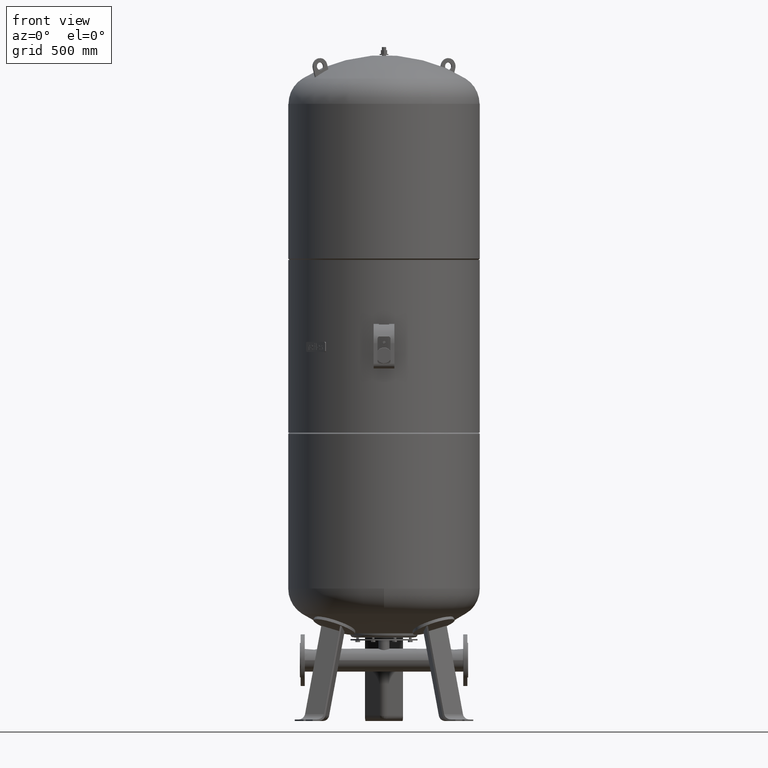
[diagram: clean part render]
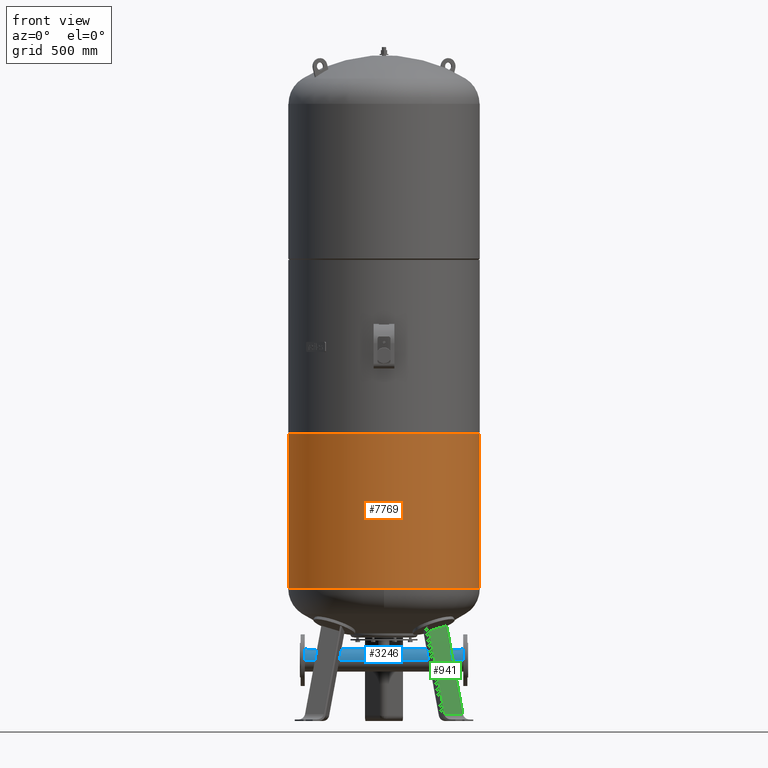
[diagram: same view with three faces highlighted in distinct colors, each labeled with its STEP entity id]
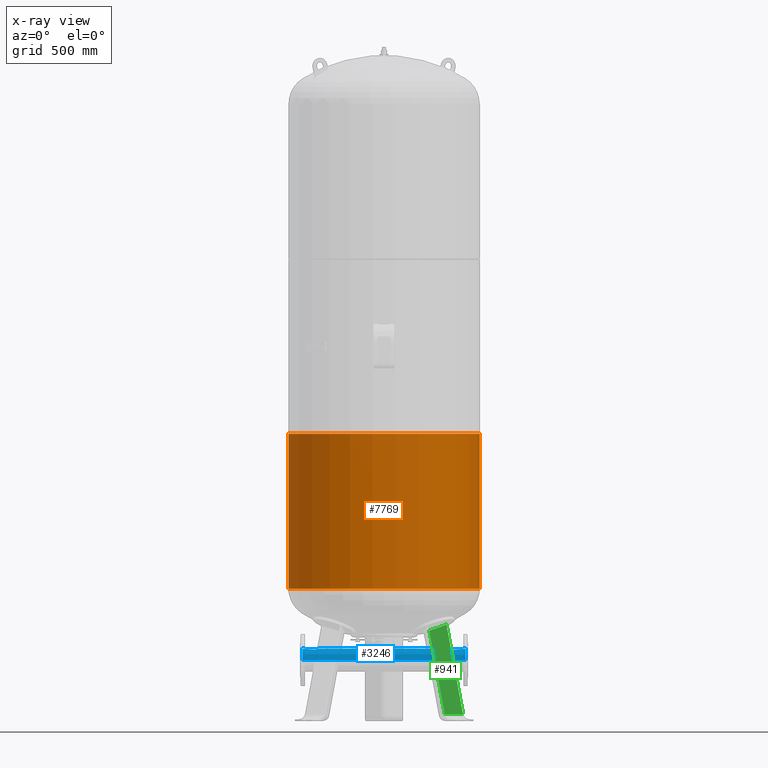
[diagram: x-ray of the same camera — body ghosted, the three highlighted faces saturated]
A machine part, front view with three faces highlighted in distinct colors.
The next image is the same camera in x-ray (body ghosted, the three faces saturated) — at least one of them is partly hidden behind the body in this view.
Their STEP definitions:

[orange] entity #7769 — the highlighted cylindrical surface (partial cylindrical patch) has radius 370 mm, axis along (0, 0, 1).
#7671=CARTESIAN_POINT('',(370.000000000000110,0.0,1109.333333333333000));
#7672=VERTEX_POINT('',#7671);
#7688=CARTESIAN_POINT('',(-370.0,-4.531044E-014,1109.333333333333000));
#7689=VERTEX_POINT('',#7688);
#7696=CARTESIAN_POINT('',(-5.646011E-015,0.0,1109.333333333333000));
#7697=DIRECTION('',(0.0,0.0,1.0));
#7698=DIRECTION('',(1.0,0.0,0.0));
#7699=AXIS2_PLACEMENT_3D('',#7696,#7697,#7698);
#7700=CIRCLE('',#7699,370.000000000000110);
#7701=EDGE_CURVE('',#7689,#7672,#7700,.T.);
#7738=CARTESIAN_POINT('',(-1.116699E-014,0.0,778.166666666666520));
#7739=DIRECTION('',(1.667129E-017,0.0,1.0));
#7740=DIRECTION('',(1.0,0.0,0.0));
#7741=AXIS2_PLACEMENT_3D('',#7738,#7739,#7740);
#7742=CYLINDRICAL_SURFACE('',#7741,370.0);
#7743=CARTESIAN_POINT('',(370.0,0.0,512.0));
#7744=VERTEX_POINT('',#7743);
#7745=CARTESIAN_POINT('',(370.000000000000110,0.0,1109.333333333333000));
#7746=DIRECTION('',(0.0,0.0,-1.0));
#7747=VECTOR('',#7746,597.333333333333030);
#7748=LINE('',#7745,#7747);
#7749=EDGE_CURVE('',#7672,#7744,#7748,.T.);
#7750=ORIENTED_EDGE('',*,*,#7749,.F.);
#7751=ORIENTED_EDGE('',*,*,#7701,.F.);
#7752=CARTESIAN_POINT('',(-370.0,4.531044E-014,512.0));
#7753=VERTEX_POINT('',#7752);
#7754=CARTESIAN_POINT('',(-370.0,-4.531044E-014,1109.333333333333000));
#7755=DIRECTION('',(0.0,0.0,-1.0));
#7756=VECTOR('',#7755,597.333333333333030);
#7757=LINE('',#7754,#7756);
#7758=EDGE_CURVE('',#7689,#7753,#7757,.T.);
#7759=ORIENTED_EDGE('',*,*,#7758,.T.);
#7760=CARTESIAN_POINT('',(-1.560433E-014,0.0,512.0));
#7761=DIRECTION('',(0.0,0.0,-1.0));
#7762=DIRECTION('',(1.0,0.0,0.0));
#7763=AXIS2_PLACEMENT_3D('',#7760,#7761,#7762);
#7764=CIRCLE('',#7763,370.0);
#7765=EDGE_CURVE('',#7744,#7753,#7764,.T.);
#7766=ORIENTED_EDGE('',*,*,#7765,.F.);
#7767=EDGE_LOOP('',(#7750,#7751,#7759,#7766));
#7768=FACE_OUTER_BOUND('',#7767,.T.);
#7769=ADVANCED_FACE('',(#7768),#7742,.T.);

[blue] entity #3246 — the highlighted face is a freeform B-spline surface patch.
#3035=CARTESIAN_POINT('',(-315.0,44.450000000000003,235.0));
#3036=CARTESIAN_POINT('',(315.0,44.450000000000003,235.0));
#3037=CARTESIAN_POINT('',(-315.0,44.449999999999996,190.550000000000040));
#3038=CARTESIAN_POINT('',(315.0,44.449999999999996,190.550000000000040));
#3039=CARTESIAN_POINT('',(-315.0,0.0,190.550000000000010));
#3040=CARTESIAN_POINT('',(315.0,0.0,190.550000000000010));
#3041=CARTESIAN_POINT('',(-315.0,-44.449999999999996,190.550000000000040));
#3042=CARTESIAN_POINT('',(315.0,-44.449999999999996,190.550000000000040));
#3043=CARTESIAN_POINT('',(-315.0,-44.450000000000003,235.0));
#3044=CARTESIAN_POINT('',(315.0,-44.450000000000003,235.0));
#3045=CARTESIAN_POINT('',(-315.0,-44.449999999999996,279.449999999999990));
#3046=CARTESIAN_POINT('',(315.0,-44.449999999999996,279.449999999999990));
#3047=CARTESIAN_POINT('',(-315.0,0.0,279.449999999999990));
#3048=CARTESIAN_POINT('',(315.0,0.0,279.449999999999990));
#3049=CARTESIAN_POINT('',(-315.0,44.449999999999996,279.449999999999990));
#3050=CARTESIAN_POINT('',(315.0,44.449999999999996,279.449999999999990));
#3051=CARTESIAN_POINT('',(-315.0,44.450000000000003,235.0));
#3052=CARTESIAN_POINT('',(315.0,44.450000000000003,235.0));
#3060=(BOUNDED_SURFACE()B_SPLINE_SURFACE(1,2,((#3035,#3037,#3039,#3041,#3043,#3045,#3047,#3049,#3051),(#3036,#3038,#3040,#3042,#3044,#3046,#3048,#3050,#3052)),.UNSPECIFIED.,.F.,.T.,.U.)B_SPLINE_SURFACE_WITH_KNOTS((2,2),(3,2,2,2,3),(-13.892013498312711,0.281214848143982),(0.0,69.821896726033160,139.643793452066320,209.465690178099460,279.287586904132640),.UNSPECIFIED.)GEOMETRIC_REPRESENTATION_ITEM()RATIONAL_B_SPLINE_SURFACE(((1.0,0.707106781186548,1.0,0.707106781186548,1.0,0.707106781186548,1.0,0.707106781186548,1.0),(1.0,0.707106781186548,1.0,0.707106781186548,1.0,0.707106781186548,1.0,0.707106781186548,1.0)))REPRESENTATION_ITEM('')SURFACE());
#3061=CARTESIAN_POINT('',(315.0,-44.450000000000003,235.0));
#3062=VERTEX_POINT('',#3061);
#3063=CARTESIAN_POINT('',(-315.0,-44.450000000000003,235.0));
#3064=VERTEX_POINT('',#3063);
#3065=CARTESIAN_POINT('',(315.0,-44.450000000000003,235.0));
#3066=DIRECTION('',(-1.0,0.0,0.0));
#3067=VECTOR('',#3066,630.0);
#3068=LINE('',#3065,#3067);
#3069=EDGE_CURVE('',#3062,#3064,#3068,.T.);
#3070=ORIENTED_EDGE('',*,*,#3069,.F.);
#3071=CARTESIAN_POINT('',(315.0,44.450000000000003,235.0));
#3072=VERTEX_POINT('',#3071);
#3073=CARTESIAN_POINT('',(315.0,0.0,235.0));
#3074=DIRECTION('',(-1.0,0.0,0.0));
#3075=DIRECTION('',(0.0,-1.0,0.0));
#3076=AXIS2_PLACEMENT_3D('',#3073,#3074,#3075);
#3077=CIRCLE('',#3076,44.450000000000003);
#3078=EDGE_CURVE('',#3062,#3072,#3077,.T.);
#3079=ORIENTED_EDGE('',*,*,#3078,.T.);
#3080=CARTESIAN_POINT('',(-315.0,44.450000000000003,235.0));
#3081=VERTEX_POINT('',#3080);
#3082=CARTESIAN_POINT('',(315.0,44.450000000000003,235.0));
#3083=DIRECTION('',(-1.0,0.0,0.0));
#3084=VECTOR('',#3083,630.0);
#3085=LINE('',#3082,#3084);
#3086=EDGE_CURVE('',#3072,#3081,#3085,.T.);
#3087=ORIENTED_EDGE('',*,*,#3086,.T.);
#3088=CARTESIAN_POINT('',(-315.0,0.0,235.0));
#3089=DIRECTION('',(-1.0,0.0,0.0));
#3090=DIRECTION('',(0.0,-1.0,0.0));
#3091=AXIS2_PLACEMENT_3D('',#3088,#3089,#3090);
#3092=CIRCLE('',#3091,44.450000000000003);
#3093=EDGE_CURVE('',#3064,#3081,#3092,.T.);
#3094=ORIENTED_EDGE('',*,*,#3093,.F.);
#3095=EDGE_LOOP('',(#3070,#3079,#3087,#3094));
#3096=FACE_OUTER_BOUND('',#3095,.T.);
#3097=CARTESIAN_POINT('',(-9.255268769733188,19.073017590302840,275.149999999999980));
#3098=VERTEX_POINT('',#3097);
#3099=CARTESIAN_POINT('',(-21.199999999999999,6.429319E-018,279.449999999999990));
#3100=VERTEX_POINT('',#3099);
#3101=CARTESIAN_POINT('',(-9.255268769733188,19.073017590302840,275.149999999999980));
#3102=CARTESIAN_POINT('',(-10.165351092310251,18.631395992768308,275.359789701071800));
#3103=CARTESIAN_POINT('',(-11.039126407685909,18.126426319528779,275.590669704612370));
#3104=CARTESIAN_POINT('',(-13.009923410229625,16.795687714215170,276.163302287794290));
#3105=CARTESIAN_POINT('',(-14.060577745397850,15.920749776911766,276.512748661790510));
#3106=CARTESIAN_POINT('',(-15.918703409469408,14.062624112840208,277.178393610927740));
#3107=CARTESIAN_POINT('',(-16.793357100909873,13.012975824006597,277.519177264415300));
#3108=CARTESIAN_POINT('',(-18.342273985098387,10.719858566093750,278.154404263451740));
#3109=CARTESIAN_POINT('',(-19.016658113098707,9.476332434212422,278.448346265430250));
#3110=CARTESIAN_POINT('',(-19.833309010748476,7.521861332932403,278.813963470886110));
#3111=CARTESIAN_POINT('',(-20.073582200570147,6.855027517860504,278.923544262539620));
#3112=CARTESIAN_POINT('',(-20.485784944487090,5.502065052499710,279.113449457189120));
#3113=CARTESIAN_POINT('',(-20.657710105999641,4.815933871447630,279.193765364275180));
#3114=CARTESIAN_POINT('',(-20.931373956715078,3.436828503930011,279.322345673069610));
#3115=CARTESIAN_POINT('',(-21.033125230235740,2.743758610999219,279.370613757842420));
#3116=CARTESIAN_POINT('',(-21.167441153364571,1.363819374060052,279.434441295891250));
#3117=CARTESIAN_POINT('',(-21.199999999999999,0.676949430575642,279.449999999999990));
#3118=CARTESIAN_POINT('',(-21.199999999999999,6.429319E-018,279.449999999999990));
#3119=B_SPLINE_CURVE_WITH_KNOTS('',3,(#3101,#3102,#3103,#3104,#3105,#3106,#3107,#3108,#3109,#3110,#3111,#3112,#3113,#3114,#3115,#3116,#3117,#3118),.UNSPECIFIED.,.F.,.U.,(4,2,2,2,2,2,2,2,4),(9.284306485815769,12.211958398692106,16.282611198256141,20.344307781709993,24.406004365163845,26.436852656890771,28.467700948617697,30.498549240344623,32.529397532071549),.UNSPECIFIED.);
#3120=EDGE_CURVE('',#3098,#3100,#3119,.T.);
#3121=ORIENTED_EDGE('',*,*,#3120,.F.);
#3122=CARTESIAN_POINT('',(9.255268769733188,19.073017590302840,275.149999999999980));
#3123=VERTEX_POINT('',#3122);
#3124=CARTESIAN_POINT('',(9.255268769733188,19.073017590302840,275.149999999999980));
#3125=CARTESIAN_POINT('',(8.899958462148710,19.245433537479592,275.068094834536740));
#3126=CARTESIAN_POINT('',(8.539141416050697,19.408244156430982,274.989391932066780));
#3127=CARTESIAN_POINT('',(7.522963997265384,19.832861277534448,274.781299957834900));
#3128=CARTESIAN_POINT('',(6.856892646496812,20.072923736784048,274.660229777031300));
#3129=CARTESIAN_POINT('',(5.505144921250057,20.484936502306649,274.448998337180460));
#3130=CARTESIAN_POINT('',(4.819463989948449,20.656882590118698,274.358858011262780));
#3131=CARTESIAN_POINT('',(3.440650489217257,20.930741876675224,274.213907570769040));
#3132=CARTESIAN_POINT('',(2.747414288529238,21.032667640938772,274.159101642628630));
#3133=CARTESIAN_POINT('',(1.366310527992786,21.167299990967432,274.086490769123660));
#3134=CARTESIAN_POINT('',(0.678442133260669,21.199999999999999,274.068689509631670));
#3135=CARTESIAN_POINT('',(0.0,21.199999999999999,274.068689509631670));
#3136=CARTESIAN_POINT('',(-0.678442133260673,21.199999999999999,274.068689509631670));
#3137=CARTESIAN_POINT('',(-1.366310527992793,21.167299990967429,274.086490769123660));
#3138=CARTESIAN_POINT('',(-2.747414288529243,21.032667640938769,274.159101642628630));
#3139=CARTESIAN_POINT('',(-3.440650489217256,20.930741876675228,274.213907570769040));
#3140=CARTESIAN_POINT('',(-4.819463989948446,20.656882590118698,274.358858011262780));
#3141=CARTESIAN_POINT('',(-5.505144921250056,20.484936502306653,274.448998337180460));
#3142=CARTESIAN_POINT('',(-6.856892646496811,20.072923736784052,274.660229777031300));
#3143=CARTESIAN_POINT('',(-7.522963997265387,19.832861277534455,274.781299957834900));
#3144=CARTESIAN_POINT('',(-8.539141416050697,19.408244156430989,274.989391932066780));
#3145=CARTESIAN_POINT('',(-8.899958462148710,19.245433537479592,275.068094834536740));
#3146=CARTESIAN_POINT('',(-9.255268769733188,19.073017590302840,275.149999999999980));
#3147=B_SPLINE_CURVE_WITH_KNOTS('',3,(#3124,#3125,#3126,#3127,#3128,#3129,#3130,#3131,#3132,#3133,#3134,#3135,#3136,#3137,#3138,#3139,#3140,#3141,#3142,#3143,#3144,#3145,#3146),.UNSPECIFIED.,.F.,.U.,(4,2,2,2,2,3,2,2,2,2,4),(120.833283642470420,121.976284529158120,124.011610928940140,126.046937328722150,128.082263728504190,130.117590128286200,132.152916528068200,134.188242927850240,136.223569327632250,138.258895727414260,139.401896614101960),.UNSPECIFIED.);
#3148=EDGE_CURVE('',#3123,#3098,#3147,.T.);
#3149=ORIENTED_EDGE('',*,*,#3148,.F.);
#3150=CARTESIAN_POINT('',(21.199999999999999,-2.609024E-015,279.449999999999990));
#3151=VERTEX_POINT('',#3150);
#3152=CARTESIAN_POINT('',(21.199999999999999,-2.609024E-015,279.449999999999990));
#3153=CARTESIAN_POINT('',(21.199999999999999,0.676949430575639,279.449999999999990));
#3154=CARTESIAN_POINT('',(21.167441153364571,1.363819374060044,279.434441295891250));
#3155=CARTESIAN_POINT('',(21.033125230235740,2.743758610999212,279.370613757842420));
#3156=CARTESIAN_POINT('',(20.931373956715078,3.436828503930004,279.322345673069610));
#3157=CARTESIAN_POINT('',(20.657710105999641,4.815933871447623,279.193765364275240));
#3158=CARTESIAN_POINT('',(20.485784944487090,5.502065052499703,279.113449457189120));
#3159=CARTESIAN_POINT('',(20.073582200570147,6.855027517860497,278.923544262539620));
#3160=CARTESIAN_POINT('',(19.833309010748476,7.521861332932395,278.813963470886110));
#3161=CARTESIAN_POINT('',(19.016658113098707,9.476332434212416,278.448346265430250));
#3162=CARTESIAN_POINT('',(18.342273985098394,10.719858566093745,278.154404263451740));
#3163=CARTESIAN_POINT('',(16.793357100909880,13.012975824006592,277.519177264415300));
#3164=CARTESIAN_POINT('',(15.918703409469408,14.062624112840204,277.178393610927740));
#3165=CARTESIAN_POINT('',(14.060577745397849,15.920749776911762,276.512748661790510));
#3166=CARTESIAN_POINT('',(13.009923410229620,16.795687714215166,276.163302287794290));
#3167=CARTESIAN_POINT('',(11.039126407685902,18.126426319528779,275.590669704612370));
#3168=CARTESIAN_POINT('',(10.165351092310248,18.631395992768311,275.359789701071800));
#3169=CARTESIAN_POINT('',(9.255268769733188,19.073017590302840,275.149999999999980));
#3170=B_SPLINE_CURVE_WITH_KNOTS('',3,(#3152,#3153,#3154,#3155,#3156,#3157,#3158,#3159,#3160,#3161,#3162,#3163,#3164,#3165,#3166,#3167,#3168,#3169),.UNSPECIFIED.,.F.,.U.,(4,2,2,2,2,2,2,2,4),(97.588192596214640,99.619040887941566,101.649889179668490,103.680737471395420,105.711585763122340,109.773282346576200,113.834978930030050,117.905631729594090,120.833283642470420),.UNSPECIFIED.);
#3171=EDGE_CURVE('',#3151,#3123,#3170,.T.);
#3172=ORIENTED_EDGE('',*,*,#3171,.F.);
#3173=CARTESIAN_POINT('',(9.255268769733188,-19.073017590302840,275.149999999999980));
#3174=VERTEX_POINT('',#3173);
#3175=CARTESIAN_POINT('',(9.255268769733188,-19.073017590302840,275.149999999999980));
#3176=CARTESIAN_POINT('',(10.165351092310251,-18.631395992768311,275.359789701071800));
#3177=CARTESIAN_POINT('',(11.039126407685902,-18.126426319528782,275.590669704612370));
#3178=CARTESIAN_POINT('',(13.009923410229620,-16.795687714215170,276.163302287794290));
#3179=CARTESIAN_POINT('',(14.060577745397845,-15.920749776911768,276.512748661790510));
#3180=CARTESIAN_POINT('',(15.918703409469403,-14.062624112840211,277.178393610927740));
#3181=CARTESIAN_POINT('',(16.793357100909873,-13.012975824006597,277.519177264415300));
#3182=CARTESIAN_POINT('',(18.342273985098387,-10.719858566093748,278.154404263451740));
#3183=CARTESIAN_POINT('',(19.016658113098707,-9.476332434212424,278.448346265430250));
#3184=CARTESIAN_POINT('',(19.833309010748476,-7.521861332932405,278.813963470886110));
#3185=CARTESIAN_POINT('',(20.073582200570147,-6.855027517860505,278.923544262539620));
#3186=CARTESIAN_POINT('',(20.485784944487090,-5.502065052499712,279.113449457189120));
#3187=CARTESIAN_POINT('',(20.657710105999641,-4.815933871447632,279.193765364275180));
#3188=CARTESIAN_POINT('',(20.931373956715078,-3.436828503930013,279.322345673069610));
#3189=CARTESIAN_POINT('',(21.033125230235740,-2.743758610999221,279.370613757842420));
#3190=CARTESIAN_POINT('',(21.167441153364571,-1.363819374060054,279.434441295891250));
#3191=CARTESIAN_POINT('',(21.199999999999999,-0.676949430575645,279.449999999999990));
#3192=CARTESIAN_POINT('',(21.199999999999999,-2.609024E-015,279.449999999999990));
#3193=B_SPLINE_CURVE_WITH_KNOTS('',3,(#3175,#3176,#3177,#3178,#3179,#3180,#3181,#3182,#3183,#3184,#3185,#3186,#3187,#3188,#3189,#3190,#3191,#3192),.UNSPECIFIED.,.F.,.U.,(4,2,2,2,2,2,2,2,4),(74.343101549958860,77.270753462835202,81.341406262399232,85.403102845853084,89.464799429306936,91.495647721033862,93.526496012760788,95.557344304487714,97.588192596214640),.UNSPECIFIED.);
#3194=EDGE_CURVE('',#3174,#3151,#3193,.T.);
#3195=ORIENTED_EDGE('',*,*,#3194,.F.);
#3196=CARTESIAN_POINT('',(-9.255268769733188,-19.073017590302840,275.149999999999980));
#3197=VERTEX_POINT('',#3196);
#3198=CARTESIAN_POINT('',(-9.255268769733188,-19.073017590302840,275.149999999999980));
#3199=CARTESIAN_POINT('',(-8.899958462148710,-19.245433537479592,275.068094834536740));
#3200=CARTESIAN_POINT('',(-8.539141416050697,-19.408244156430985,274.989391932066780));
#3201=CARTESIAN_POINT('',(-7.522963997265386,-19.832861277534455,274.781299957834900));
#3202=CARTESIAN_POINT('',(-6.856892646496809,-20.072923736784052,274.660229777031300));
#3203=CARTESIAN_POINT('',(-5.505144921250054,-20.484936502306653,274.448998337180460));
#3204=CARTESIAN_POINT('',(-4.819463989948445,-20.656882590118698,274.358858011262780));
#3205=CARTESIAN_POINT('',(-3.440650489217258,-20.930741876675224,274.213907570769040));
#3206=CARTESIAN_POINT('',(-2.747414288529246,-21.032667640938769,274.159101642628630));
#3207=CARTESIAN_POINT('',(-1.366310527992796,-21.167299990967429,274.086490769123660));
#3208=CARTESIAN_POINT('',(-0.678442133260674,-21.199999999999999,274.068689509631670));
#3209=CARTESIAN_POINT('',(0.678442133260674,-21.199999999999999,274.068689509631670));
#3210=CARTESIAN_POINT('',(1.366310527992797,-21.167299990967429,274.086490769123660));
#3211=CARTESIAN_POINT('',(2.747414288529245,-21.032667640938769,274.159101642628630));
#3212=CARTESIAN_POINT('',(3.440650489217255,-20.930741876675235,274.213907570769040));
#3213=CARTESIAN_POINT('',(4.819463989948442,-20.656882590118705,274.358858011262780));
#3214=CARTESIAN_POINT('',(5.505144921250053,-20.484936502306656,274.448998337180460));
#3215=CARTESIAN_POINT('',(6.856892646496812,-20.072923736784052,274.660229777031300));
#3216=CARTESIAN_POINT('',(7.522963997265387,-19.832861277534448,274.781299957834900));
#3217=CARTESIAN_POINT('',(8.539141416050697,-19.408244156430982,274.989391932066780));
#3218=CARTESIAN_POINT('',(8.899958462148712,-19.245433537479592,275.068094834536740));
#3219=CARTESIAN_POINT('',(9.255268769733188,-19.073017590302840,275.149999999999980));
#3220=B_SPLINE_CURVE_WITH_KNOTS('',3,(#3198,#3199,#3200,#3201,#3202,#3203,#3204,#3205,#3206,#3207,#3208,#3209,#3210,#3211,#3212,#3213,#3214,#3215,#3216,#3217,#3218,#3219),.UNSPECIFIED.,.F.,.U.,(4,2,2,2,2,2,2,2,2,2,4),(55.774488578327329,56.917489465015024,58.952815864797046,60.988142264579061,63.023468664361076,65.058795064143098,67.094121463925120,69.129447863707128,71.164774263489150,73.200100663271172,74.343101549958860),.UNSPECIFIED.);
#3221=EDGE_CURVE('',#3197,#3174,#3220,.T.);
#3222=ORIENTED_EDGE('',*,*,#3221,.F.);
#3223=CARTESIAN_POINT('',(-21.199999999999999,6.429319E-018,279.449999999999990));
#3224=CARTESIAN_POINT('',(-21.199999999999999,-0.676949430575640,279.449999999999990));
#3225=CARTESIAN_POINT('',(-21.167441153364571,-1.363819374060042,279.434441295891250));
#3226=CARTESIAN_POINT('',(-21.033125230235740,-2.743758610999208,279.370613757842420));
#3227=CARTESIAN_POINT('',(-20.931373956715078,-3.436828503930000,279.322345673069610));
#3228=CARTESIAN_POINT('',(-20.657710105999641,-4.815933871447621,279.193765364275180));
#3229=CARTESIAN_POINT('',(-20.485784944487087,-5.502065052499702,279.113449457189120));
#3230=CARTESIAN_POINT('',(-20.073582200570151,-6.855027517860495,278.923544262539620));
#3231=CARTESIAN_POINT('',(-19.833309010748476,-7.521861332932393,278.813963470886110));
#3232=CARTESIAN_POINT('',(-19.016658113098707,-9.476332434212416,278.448346265430250));
#3233=CARTESIAN_POINT('',(-18.342273985098394,-10.719858566093745,278.154404263451740));
#3234=CARTESIAN_POINT('',(-16.793357100909880,-13.012975824006595,277.519177264415300));
#3235=CARTESIAN_POINT('',(-15.918703409469408,-14.062624112840208,277.178393610927740));
#3236=CARTESIAN_POINT('',(-14.060577745397850,-15.920749776911766,276.512748661790510));
#3237=CARTESIAN_POINT('',(-13.009923410229625,-16.795687714215170,276.163302287794290));
#3238=CARTESIAN_POINT('',(-11.039126407685908,-18.126426319528782,275.590669704612370));
#3239=CARTESIAN_POINT('',(-10.165351092310249,-18.631395992768311,275.359789701071800));
#3240=CARTESIAN_POINT('',(-9.255268769733188,-19.073017590302840,275.149999999999980));
#3241=B_SPLINE_CURVE_WITH_KNOTS('',3,(#3223,#3224,#3225,#3226,#3227,#3228,#3229,#3230,#3231,#3232,#3233,#3234,#3235,#3236,#3237,#3238,#3239,#3240),.UNSPECIFIED.,.F.,.U.,(4,2,2,2,2,2,2,2,4),(32.529397532071549,34.560245823798468,36.591094115525394,38.621942407252320,40.652790698979246,44.714487282433097,48.776183865886949,52.846836665450986,55.774488578327329),.UNSPECIFIED.);
#3242=EDGE_CURVE('',#3100,#3197,#3241,.T.);
#3243=ORIENTED_EDGE('',*,*,#3242,.F.);
#3244=EDGE_LOOP('',(#3121,#3149,#3172,#3195,#3222,#3243));
#3245=FACE_BOUND('',#3244,.T.);
#3246=ADVANCED_FACE('',(#3096,#3245),#3060,.T.);

[green] entity #941 — the highlighted planar face has unit normal (0.3243, -0.9325, 0.1588).
#242=CARTESIAN_POINT('',(174.964894062055810,-82.383260228509442,348.869175182353330));
#243=VERTEX_POINT('',#242);
#261=CARTESIAN_POINT('',(241.377997885815320,-55.253728775100939,372.562952014676110));
#262=VERTEX_POINT('',#261);
#263=CARTESIAN_POINT('',(241.377997885815320,-55.253728775100939,372.562952014676110));
#264=CARTESIAN_POINT('',(228.112303617602180,-60.793190615536673,367.122797962066330));
#265=CARTESIAN_POINT('',(214.786380419185210,-66.287684017357122,362.069703598062520));
#266=CARTESIAN_POINT('',(194.645794721043930,-74.480237449833609,355.088683497571820));
#267=CARTESIAN_POINT('',(187.828305682259040,-77.233956594289609,352.839681936075920));
#268=CARTESIAN_POINT('',(178.999738907126360,-80.772078679025313,350.091155577606000));
#269=CARTESIAN_POINT('',(176.981983461321650,-81.578804624385526,349.474179354457020));
#270=CARTESIAN_POINT('',(174.964894062055810,-82.383260228509442,348.869175182353330));
#271=B_SPLINE_CURVE_WITH_KNOTS('',3,(#263,#264,#265,#266,#267,#268,#269,#270),.UNSPECIFIED.,.F.,.U.,(4,2,2,4),(536.144034177567730,540.433260676197730,542.629325785795340,543.280185670864850),.UNSPECIFIED.);
#272=EDGE_CURVE('',#262,#243,#271,.T.);
#594=CARTESIAN_POINT('',(234.208860074676040,-116.587779953756840,27.029948423057284));
#595=VERTEX_POINT('',#594);
#604=CARTESIAN_POINT('',(304.983499698466010,-91.976382368576168,27.029948423057281));
#605=VERTEX_POINT('',#604);
#613=CARTESIAN_POINT('',(304.983499698466010,-91.976382368576168,27.029948423057281));
#614=DIRECTION('',(-0.944521094592692,-0.328450760190052,4.741265E-017));
#615=VECTOR('',#614,74.931772333057609);
#616=LINE('',#613,#615);
#617=EDGE_CURVE('',#605,#595,#616,.T.);
#861=CARTESIAN_POINT('',(304.983499698466010,-91.976382368576168,27.029948423057281));
#862=DIRECTION('',(-0.180056805991956,0.103955845408880,0.978147600733805));
#863=VECTOR('',#862,353.252416437355920);
#864=LINE('',#861,#863);
#865=EDGE_CURVE('',#605,#262,#864,.T.);
#925=CARTESIAN_POINT('',(322.427826939179400,-102.047869396833960,-67.735293817669458));
#926=DIRECTION('',(0.324282864533176,-0.932535537409927,0.158802063077709));
#927=DIRECTION('',(-0.180056805991956,0.103955845408880,0.978147600733806));
#928=AXIS2_PLACEMENT_3D('',#925,#926,#927);
#929=PLANE('',#928);
#930=ORIENTED_EDGE('',*,*,#865,.T.);
#931=ORIENTED_EDGE('',*,*,#272,.T.);
#932=CARTESIAN_POINT('',(234.208860074676040,-116.587779953756840,27.029948423057284));
#933=DIRECTION('',(-0.180056805991956,0.103955845408880,0.978147600733806));
#934=VECTOR('',#933,329.029306535999750);
#935=LINE('',#932,#934);
#936=EDGE_CURVE('',#595,#243,#935,.T.);
#937=ORIENTED_EDGE('',*,*,#936,.F.);
#938=ORIENTED_EDGE('',*,*,#617,.F.);
#939=EDGE_LOOP('',(#930,#931,#937,#938));
#940=FACE_OUTER_BOUND('',#939,.T.);
#941=ADVANCED_FACE('',(#940),#929,.T.);